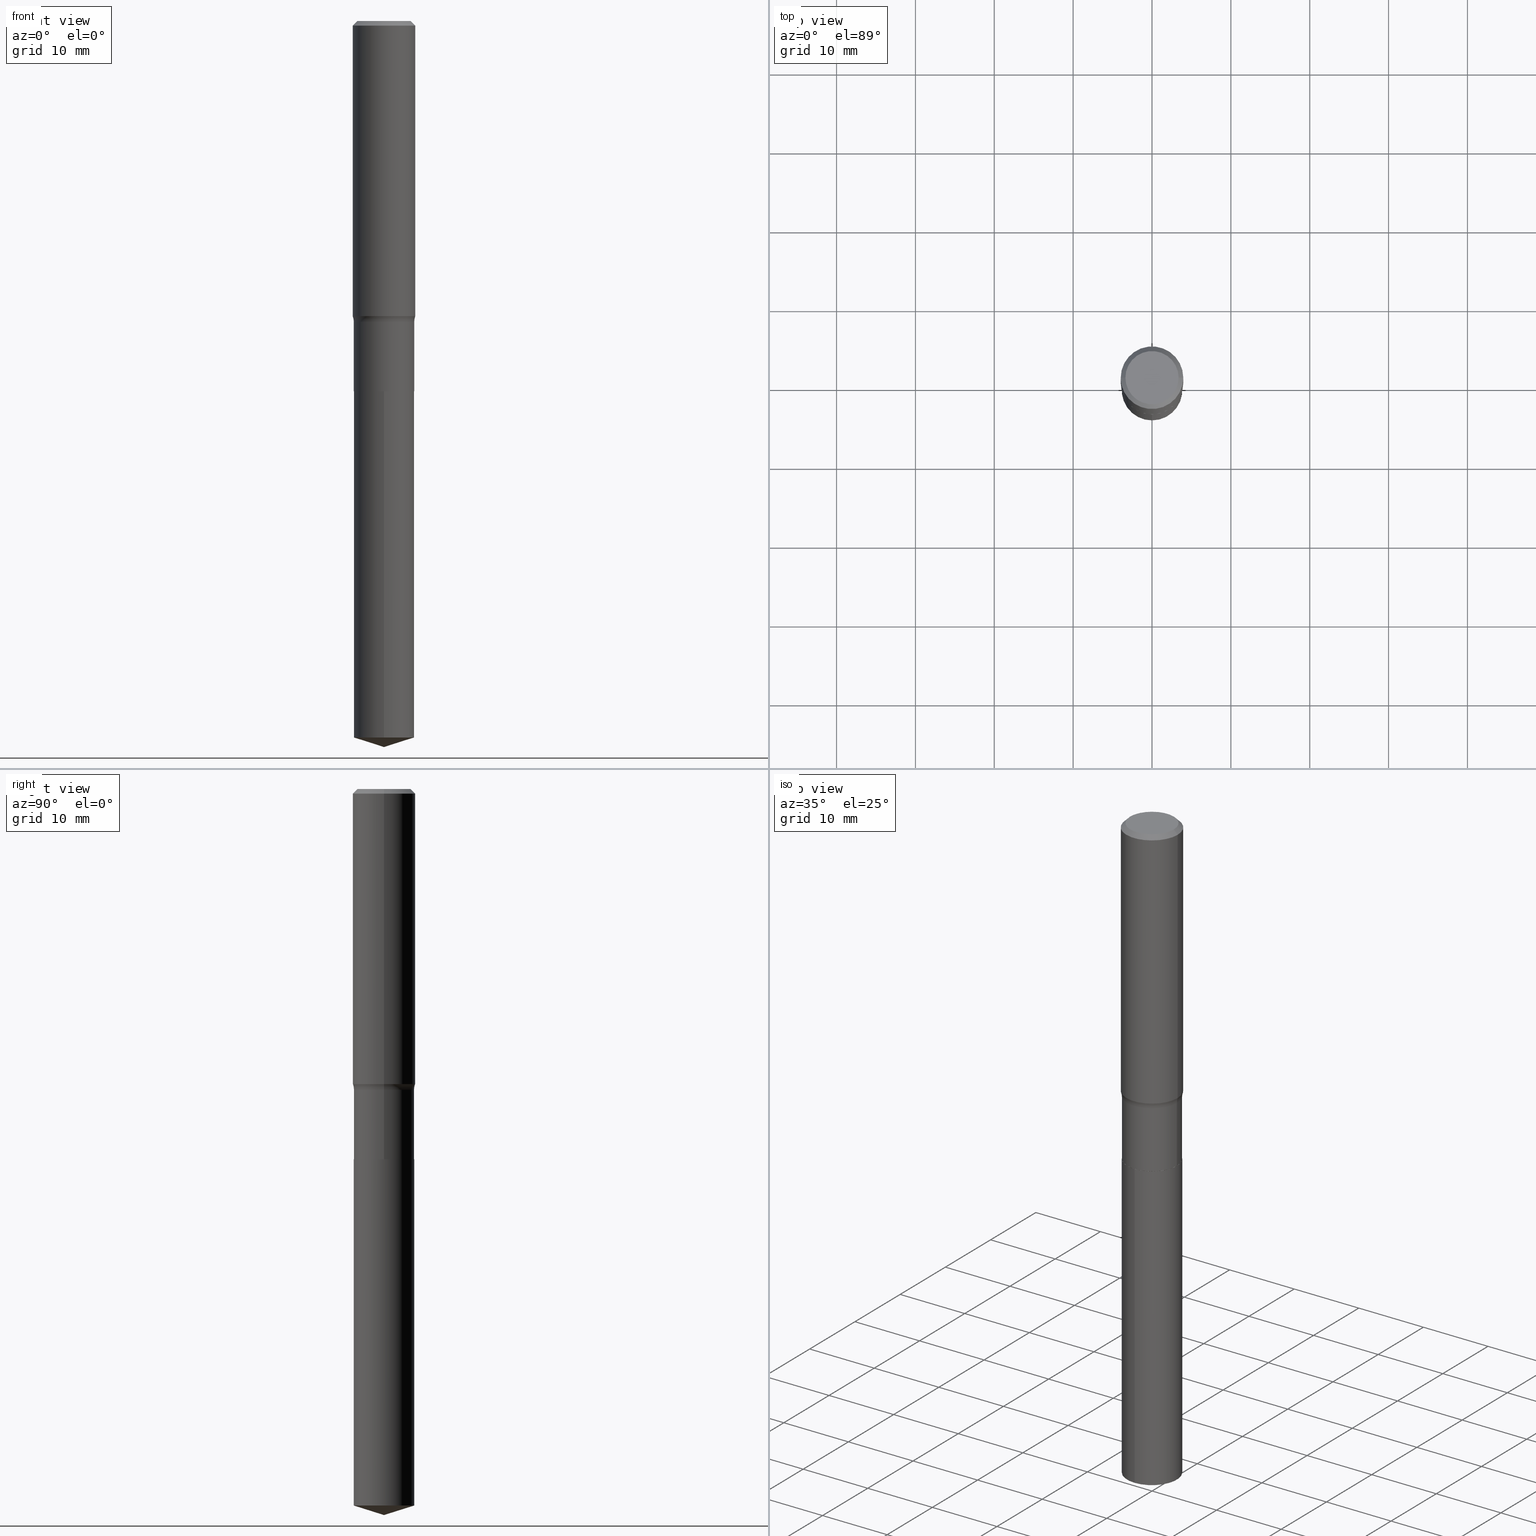
[diagram: canonical four-view strip — front | top / right | iso, engineering-drawing reading convention]
A machine part, canonical four-view strip (front | top / right | iso — engineering-drawing reading convention). The complete STEP part file that produces these views, byte-faithful:
ISO-10303-21;
HEADER;
FILE_DESCRIPTION (( 'STEP AP203' ),
    '1' );
FILE_NAME ('52347.STEP',
    '2024-04-19T13:50:18',
    ( '' ),
    ( '' ),
    'SwSTEP 2.0',
    'SolidWorks 2023',
    '' );
FILE_SCHEMA (( 'CONFIG_CONTROL_DESIGN' ));
ENDSEC;

DATA;
#1 = ADVANCED_FACE ( 'NONE', ( #156 ), #66, .T. ) ;
#2 = CARTESIAN_POINT ( 'NONE',  ( -0.1562500000000000000, 1.009256324509342545E-15, -0.02343750000000013878 ) ) ;
#3 = DIRECTION ( 'NONE',  ( -2.445468183589495391E-29, 3.491482230435539651E-15, 1.000000000000000000 ) ) ;
#4 = CARTESIAN_POINT ( 'NONE',  ( 3.603318810622414011E-29, -5.144584283132411729E-15, -1.473467500999733115 ) ) ;
#5 = CARTESIAN_POINT ( 'NONE',  ( 0.000000000000000000, 0.000000000000000000, 0.000000000000000000 ) ) ;
#6 = CIRCLE ( 'NONE', #280, 0.07799999999999999989 ) ;
#7 = VECTOR ( 'NONE', #129, 39.37007874015748143 ) ;
#8 = ORIENTED_EDGE ( 'NONE', *, *, #55, .F. ) ;
#9 = APPROVAL ( #398, 'UNSPECIFIED' ) ;
#10 = CARTESIAN_POINT ( 'NONE',  ( 0.000000000000000000, 0.000000000000000000, 0.000000000000000000 ) ) ;
#11 = CARTESIAN_POINT ( 'NONE',  ( 0.1509999999999999676, -6.297235742737493798E-15, -1.501600000000000268 ) ) ;
#12 = LINE ( 'NONE', #472, #463 ) ;
#13 = CC_DESIGN_PERSON_AND_ORGANIZATION_ASSIGNMENT ( #368, #220, ( #250 ) ) ;
#14 = AXIS2_PLACEMENT_3D ( 'NONE', #260, #217, #101 ) ;
#15 = CARTESIAN_POINT ( 'NONE',  ( -0.1562500000000000000, -1.502984913880617145E-15, -0.02343750000000013878 ) ) ;
#16 = DIRECTION ( 'NONE',  ( 1.000000000000000000, -6.982962677686266711E-15, 0.000000000000000000 ) ) ;
#17 = CARTESIAN_POINT ( 'NONE',  ( 0.1504999999999999949, -7.506335730378875290E-15, -1.848900000000000432 ) ) ;
#18 = FACE_OUTER_BOUND ( 'NONE', #40, .T. ) ;
#19 = EDGE_CURVE ( 'NONE', #161, #153, #341, .T. ) ;
#20 = CONICAL_SURFACE ( 'NONE', #170, 0.1562500000000000000, 0.7853981633974452814 ) ;
#21 = VECTOR ( 'NONE', #22, 39.37007874015748143 ) ;
#22 = DIRECTION ( 'NONE',  ( 0.7071067811866199593, -2.468850131083015945E-15, 0.7071067811864750752 ) ) ;
#23 = CC_DESIGN_PERSON_AND_ORGANIZATION_ASSIGNMENT ( #225, #72, ( #238 ) ) ;
#24 = DATE_AND_TIME ( #333, #85 ) ;
#25 = DIRECTION ( 'NONE',  ( -6.982962677686265133E-15, -1.000000000000000000, 3.618341713462600054E-15 ) ) ;
#26 = ORIENTED_EDGE ( 'NONE', *, *, #408, .T. ) ;
#27 = APPROVAL_STATUS ( 'not_yet_approved' ) ;
#28 = ADVANCED_FACE ( 'NONE', ( #189 ), #20, .T. ) ;
#29 =( NAMED_UNIT ( * ) SI_UNIT ( $, .STERADIAN. ) SOLID_ANGLE_UNIT ( ) );
#30 = CARTESIAN_POINT ( 'NONE',  ( 0.1509999999999999953, -7.508081471048297583E-15, -1.848400000000000487 ) ) ;
#31 = COORDINATED_UNIVERSAL_TIME_OFFSET ( 5, 0, .BEHIND. ) ;
#32 = COORDINATED_UNIVERSAL_TIME_OFFSET ( 5, 0, .BEHIND. ) ;
#33 = CALENDAR_DATE ( 2024, 19, 4 ) ;
#34 = ORIENTED_EDGE ( 'NONE', *, *, #328, .F. ) ;
#35 = CYLINDRICAL_SURFACE ( 'NONE', #331, 0.1562500000000000833 ) ;
#36 = ORIENTED_EDGE ( 'NONE', *, *, #451, .T. ) ;
#37 = EDGE_CURVE ( 'NONE', #481, #339, #337, .T. ) ;
#38 = COORDINATED_UNIVERSAL_TIME_OFFSET ( 5, 0, .BEHIND. ) ;
#39 = VERTEX_POINT ( 'NONE', #370 ) ;
#40 = EDGE_LOOP ( 'NONE', ( #80, #423, #453 ) ) ;
#41 = DATE_AND_TIME ( #33, #281 ) ;
#42 = ORIENTED_EDGE ( 'NONE', *, *, #19, .T. ) ;
#43 = ORIENTED_EDGE ( 'NONE', *, *, #289, .F. ) ;
#44 = CC_DESIGN_PERSON_AND_ORGANIZATION_ASSIGNMENT ( #113, #372, ( #340 ) ) ;
#45 = FACE_OUTER_BOUND ( 'NONE', #226, .T. ) ;
#46 = AXIS2_PLACEMENT_3D ( 'NONE', #382, #75, #338 ) ;
#47 = DIRECTION ( 'NONE',  ( -0.7071067811866199593, 7.493145998870616062E-15, 0.7071067811864750752 ) ) ;
#48 = LINE ( 'NONE', #211, #384 ) ;
#49 = CARTESIAN_POINT ( 'NONE',  ( 4.521427275755699550E-29, -6.455399847387092276E-15, -1.848900000000000432 ) ) ;
#50 = DIRECTION ( 'NONE',  ( -1.000000000000000000, 6.982962677686266711E-15, 0.000000000000000000 ) ) ;
#51 = CIRCLE ( 'NONE', #196, 0.1509999999999999676 ) ;
#52 = FACE_OUTER_BOUND ( 'NONE', #355, .T. ) ;
#53 = ORIENTED_EDGE ( 'NONE', *, *, #328, .T. ) ;
#54 = CARTESIAN_POINT ( 'NONE',  ( 5.731567514496448055E-31, -8.183159387913671455E-17, -0.02343750000000013878 ) ) ;
#55 = EDGE_CURVE ( 'NONE', #339, #415, #392, .T. ) ;
#56 = DIRECTION ( 'NONE',  ( 1.000000000000000000, -6.982962677686268288E-15, 4.876286914311434227E-29 ) ) ;
#57 = DIRECTION ( 'NONE',  ( 1.000000000000000000, -6.982962677686266711E-15, 4.876176775795935232E-29 ) ) ;
#58 = EDGE_LOOP ( 'NONE', ( #77, #224, #458, #34 ) ) ;
#59 = DIRECTION ( 'NONE',  ( -2.445468806185136597E-29, 3.491481338843145583E-15, 1.000000000000000000 ) ) ;
#60 = COORDINATED_UNIVERSAL_TIME_OFFSET ( 5, 0, .BEHIND. ) ;
#61 = CIRCLE ( 'NONE', #367, 0.1562500000000000000 ) ;
#62 = CIRCLE ( 'NONE', #427, 0.1504999999999999949 ) ;
#63 = LENGTH_MEASURE_WITH_UNIT ( LENGTH_MEASURE( 0.02539999999999999897 ), #219 );
#64 = DIRECTION ( 'NONE',  ( -2.445468806185136597E-29, 3.491481338843145583E-15, 1.000000000000000000 ) ) ;
#65 = DATE_TIME_ROLE ( 'creation_date' ) ;
#66 = CONICAL_SURFACE ( 'NONE', #109, 0.1504999999999999949, 0.7853981633975507526 ) ;
#67 = CIRCLE ( 'NONE', #402, 0.1509999999999999953 ) ;
#68 = MANIFOLD_SOLID_BREP ( 'Body-Move/Copy2[1]', #488 ) ;
#69 = PERSON ( 'UNSPECIFIED', 'UNSPECIFIED', 'UNSPECIFIED', ('UNSPECIFIED'), ('UNSPECIFIED'), ('UNSPECIFIED') ) ;
#70 = VERTEX_POINT ( 'NONE', #277 ) ;
#71 = EDGE_CURVE ( 'NONE', #487, #221, #348, .T. ) ;
#72 = PERSON_AND_ORGANIZATION_ROLE ( 'design_owner' ) ;
#73 = ORIENTED_EDGE ( 'NONE', *, *, #173, .F. ) ;
#74 = ORIENTED_EDGE ( 'NONE', *, *, #89, .F. ) ;
#75 = DIRECTION ( 'NONE',  ( -2.445468806185136597E-29, 3.491481338843145583E-15, 1.000000000000000000 ) ) ;
#76 = MANIFOLD_SOLID_BREP ( 'Body-Move/Copy2[2]', #285 ) ;
#77 = ORIENTED_EDGE ( 'NONE', *, *, #166, .T. ) ;
#78 = AXIS2_PLACEMENT_3D ( 'NONE', #81, #380, #227 ) ;
#79 = FACE_OUTER_BOUND ( 'NONE', #464, .T. ) ;
#80 = ORIENTED_EDGE ( 'NONE', *, *, #376, .F. ) ;
#81 = CARTESIAN_POINT ( 'NONE',  ( -7.955031918821650812E-47, 1.135767727816383927E-32, 3.252968060235157842E-18 ) ) ;
#82 = ORIENTED_EDGE ( 'NONE', *, *, #37, .F. ) ;
#83 = DIRECTION ( 'NONE',  ( 7.105427357601001859E-15, 1.000000000000000000, -3.491481338843145583E-15 ) ) ;
#84 = DIRECTION ( 'NONE',  ( -2.445468806185136597E-29, 3.491481338843145583E-15, 1.000000000000000000 ) ) ;
#85 = LOCAL_TIME ( 9, 50, 18.00000000000000000, #38 ) ;
#86 = CARTESIAN_POINT ( 'NONE',  ( -0.1562500000000000833, 1.110223024625157132E-15, -7.685836078523293962E-30 ) ) ;
#87 = ADVANCED_FACE ( 'NONE', ( #246 ), #401, .T. ) ;
#88 = CARTESIAN_POINT ( 'NONE',  ( -0.1509999999999999676, 1.072919530997751050E-15, -7.427591986284906212E-30 ) ) ;
#89 = EDGE_CURVE ( 'NONE', #153, #161, #256, .T. ) ;
#90 = UNCERTAINTY_MEASURE_WITH_UNIT (LENGTH_MEASURE( 1.000000000000000082E-05 ), #139, 'distance_accuracy_value', 'NONE');
#91 = DIRECTION ( 'NONE',  ( 1.000000000000000000, -6.982962677686266711E-15, 4.876176775795936353E-29 ) ) ;
#92 = ORIENTED_EDGE ( 'NONE', *, *, #459, .T. ) ;
#93 = CARTESIAN_POINT ( 'NONE',  ( 0.2289999999999999258, -6.841906831597022633E-15, -1.501600000000000268 ) ) ;
#94 = AXIS2_PLACEMENT_3D ( 'NONE', #311, #84, #383 ) ;
#95 = CARTESIAN_POINT ( 'NONE',  ( 0.1562500000000000000, -1.172919512267615999E-15, -0.02343750000000013878 ) ) ;
#96 = CARTESIAN_POINT ( 'NONE',  ( 0.000000000000000000, 0.000000000000000000, 0.000000000000000000 ) ) ;
#97 = PERSON_AND_ORGANIZATION ( #69, #393 ) ;
#98 = CARTESIAN_POINT ( 'NONE',  ( 3.672115959367601524E-29, -5.242808378406868566E-15, -1.501600000000000268 ) ) ;
#99 = ORIENTED_EDGE ( 'NONE', *, *, #289, .T. ) ;
#100 = AXIS2_PLACEMENT_3D ( 'NONE', #242, #353, #430 ) ;
#101 = DIRECTION ( 'NONE',  ( 1.000000000000000000, -6.982962677686263555E-15, 0.000000000000000000 ) ) ;
#102 = ORIENTED_EDGE ( 'NONE', *, *, #408, .F. ) ;
#103 = APPROVAL ( #406, 'UNSPECIFIED' ) ;
#104 = ORIENTED_EDGE ( 'NONE', *, *, #482, .F. ) ;
#105 = FACE_OUTER_BOUND ( 'NONE', #409, .T. ) ;
#106 = COORDINATED_UNIVERSAL_TIME_OFFSET ( 5, 0, .BEHIND. ) ;
#107 = APPLICATION_PROTOCOL_DEFINITION ( 'international standard', 'config_control_design', 1994, #479 ) ;
#108 = CALENDAR_DATE ( 2024, 19, 4 ) ;
#109 = AXIS2_PLACEMENT_3D ( 'NONE', #234, #228, #306 ) ;
#110 = ORIENTED_EDGE ( 'NONE', *, *, #118, .F. ) ;
#111 = APPROVAL_PERSON_ORGANIZATION ( #292, #419, #293 ) ;
#112 = CARTESIAN_POINT ( 'NONE',  ( 4.520204541352607869E-29, -6.453654106717671562E-15, -1.848400000000000487 ) ) ;
#113 = PERSON_AND_ORGANIZATION ( #69, #393 ) ;
#114 = DIRECTION ( 'NONE',  ( 2.445468806185136597E-29, -3.491481338843145583E-15, -1.000000000000000000 ) ) ;
#115 = VERTEX_POINT ( 'NONE', #388 ) ;
#116 = FACE_OUTER_BOUND ( 'NONE', #160, .T. ) ;
#117 = DIRECTION ( 'NONE',  ( 1.000000000000000000, -6.982962677686266711E-15, 0.000000000000000000 ) ) ;
#118 = EDGE_CURVE ( 'NONE', #221, #379, #302, .T. ) ;
#119 = CARTESIAN_POINT ( 'NONE',  ( 3.672115959367601524E-29, -5.242808378406868566E-15, -1.501600000000000268 ) ) ;
#120 = ORIENTED_EDGE ( 'NONE', *, *, #243, .T. ) ;
#121 =( GEOMETRIC_REPRESENTATION_CONTEXT ( 3 ) GLOBAL_UNCERTAINTY_ASSIGNED_CONTEXT ( ( #90 ) ) GLOBAL_UNIT_ASSIGNED_CONTEXT ( ( #139, #395, #29 ) ) REPRESENTATION_CONTEXT ( 'NONE', 'WORKASPACE' ) );
#122 = DIRECTION ( 'NONE',  ( -2.445468806185136597E-29, 3.491481338843145583E-15, 1.000000000000000000 ) ) ;
#123 = DIRECTION ( 'NONE',  ( -2.445468806185136597E-29, 3.491481338843145583E-15, 1.000000000000000000 ) ) ;
#124 = CARTESIAN_POINT ( 'NONE',  ( 0.1504999999999999949, -7.506335730378875290E-15, -1.848900000000000432 ) ) ;
#125 = DIRECTION ( 'NONE',  ( -2.445468806185136597E-29, 3.491481338843145583E-15, 1.000000000000000000 ) ) ;
#126 = ORIENTED_EDGE ( 'NONE', *, *, #303, .F. ) ;
#127 = CARTESIAN_POINT ( 'NONE',  ( -8.741345162783932902E-28, 1.248033088952442065E-13, 35.74507874015748143 ) ) ;
#128 = EDGE_CURVE ( 'NONE', #415, #339, #61, .T. ) ;
#129 = DIRECTION ( 'NONE',  ( -2.445468183589495391E-29, 3.491482230435539651E-15, 1.000000000000000000 ) ) ;
#130 = AXIS2_PLACEMENT_3D ( 'NONE', #112, #457, #192 ) ;
#131 = CIRCLE ( 'NONE', #454, 0.1328125000000000000 ) ;
#132 = EDGE_CURVE ( 'NONE', #153, #339, #310, .T. ) ;
#133 = DIRECTION ( 'NONE',  ( -2.445468183589495391E-29, 3.491482230435539651E-15, 1.000000000000000000 ) ) ;
#134 = ADVANCED_FACE ( 'NONE', ( #474 ), #445, .T. ) ;
#135 = DIRECTION ( 'NONE',  ( 1.000000000000000000, -6.982962677686265133E-15, 4.883557194083112340E-29 ) ) ;
#136 = DIRECTION ( 'NONE',  ( -2.445468183589495391E-29, 3.491482230435539651E-15, 1.000000000000000000 ) ) ;
#137 = AXIS2_PLACEMENT_3D ( 'NONE', #4, #123, #200 ) ;
#138 = CIRCLE ( 'NONE', #100, 0.1509999999999999953 ) ;
#139 =( CONVERSION_BASED_UNIT ( 'INCH', #63 ) LENGTH_UNIT ( ) NAMED_UNIT ( #360 ) );
#140 = ORIENTED_EDGE ( 'NONE', *, *, #321, .T. ) ;
#141 = CARTESIAN_POINT ( 'NONE',  ( -0.1504999999999999949, -5.383383802894031318E-15, -1.848900000000000432 ) ) ;
#142 = ADVANCED_FACE ( 'NONE', ( #202 ), #35, .T. ) ;
#143 = DIRECTION ( 'NONE',  ( 2.438088387897960049E-29, -3.491481338843145188E-15, -1.000000000000000000 ) ) ;
#144 = EDGE_LOOP ( 'NONE', ( #308, #265, #158, #8 ) ) ;
#145 = DIRECTION ( 'NONE',  ( -6.659769872151627355E-15, -0.9537169507482260444, 0.3007057995042756726 ) ) ;
#146 = DATE_AND_TIME ( #359, #429 ) ;
#147 = AXIS2_PLACEMENT_3D ( 'NONE', #191, #329, #117 ) ;
#148 = AXIS2_PLACEMENT_3D ( 'NONE', #93, #316, #247 ) ;
#149 = PLANE ( 'NONE',  #420 ) ;
#150 = LOCAL_TIME ( 9, 50, 18.00000000000000000, #31 ) ;
#151 = PERSON_AND_ORGANIZATION ( #69, #393 ) ;
#152 = APPROVAL_ROLE ( '' ) ;
#153 = VERTEX_POINT ( 'NONE', #272 ) ;
#154 = CIRCLE ( 'NONE', #130, 0.1509999999999999953 ) ;
#155 = CARTESIAN_POINT ( 'NONE',  ( 0.000000000000000000, 0.000000000000000000, 0.000000000000000000 ) ) ;
#156 = FACE_OUTER_BOUND ( 'NONE', #274, .T. ) ;
#157 = APPROVAL_PERSON_ORGANIZATION ( #261, #103, #190 ) ;
#158 = ORIENTED_EDGE ( 'NONE', *, *, #330, .T. ) ;
#159 = ORIENTED_EDGE ( 'NONE', *, *, #385, .T. ) ;
#160 = EDGE_LOOP ( 'NONE', ( #452, #405 ) ) ;
#161 = VERTEX_POINT ( 'NONE', #266 ) ;
#162 = ORIENTED_EDGE ( 'NONE', *, *, #459, .F. ) ;
#163 = AXIS2_PLACEMENT_3D ( 'NONE', #253, #64, #57 ) ;
#164 = DIRECTION ( 'NONE',  ( -2.445468806185136597E-29, 3.491481338843145583E-15, 1.000000000000000000 ) ) ;
#165 = DIRECTION ( 'NONE',  ( 6.982962677686265922E-15, 1.000000000000000000, -3.491482230435539651E-15 ) ) ;
#166 = EDGE_CURVE ( 'NONE', #379, #221, #154, .T. ) ;
#167 = DIRECTION ( 'NONE',  ( 1.000000000000000000, -6.982962677686265133E-15, 0.000000000000000000 ) ) ;
#168 = DIRECTION ( 'NONE',  ( -2.445468183589495391E-29, 3.491482230435539651E-15, 1.000000000000000000 ) ) ;
#169 = DIRECTION ( 'NONE',  ( -6.982962677686266711E-15, -1.000000000000000000, 3.618341713462600054E-15 ) ) ;
#170 = AXIS2_PLACEMENT_3D ( 'NONE', #327, #114, #231 ) ;
#171 = CIRCLE ( 'NONE', #148, 0.07799999999999999989 ) ;
#172 = CARTESIAN_POINT ( 'NONE',  ( 5.731567514496448055E-31, -8.183159387913671455E-17, -0.02343750000000013878 ) ) ;
#173 = EDGE_CURVE ( 'NONE', #481, #491, #193, .T. ) ;
#174 = CYLINDRICAL_SURFACE ( 'NONE', #358, 0.1509999999999999953 ) ;
#175 = DIRECTION ( 'NONE',  ( -2.445468183589495391E-29, 3.491482230435539651E-15, 1.000000000000000000 ) ) ;
#176 = DIRECTION ( 'NONE',  ( -6.982962677686266711E-15, -1.000000000000000000, 3.500519750498728492E-15 ) ) ;
#177 = VECTOR ( 'NONE', #350, 39.37007874015748143 ) ;
#178 = ADVANCED_FACE ( 'NONE', ( #371 ), #416, .T. ) ;
#179 = ORIENTED_EDGE ( 'NONE', *, *, #252, .F. ) ;
#180 = ADVANCED_FACE ( 'NONE', ( #79 ), #437, .F. ) ;
#181 = LINE ( 'NONE', #298, #286 ) ;
#182 = APPROVAL_DATE_TIME ( #365, #419 ) ;
#183 = ORIENTED_EDGE ( 'NONE', *, *, #336, .F. ) ;
#184 = AXIS2_PLACEMENT_3D ( 'NONE', #431, #467, #167 ) ;
#185 = AXIS2_PLACEMENT_3D ( 'NONE', #216, #168, #169 ) ;
#186 = CC_DESIGN_APPROVAL ( #419, ( #250 ) ) ;
#187 = ORIENTED_EDGE ( 'NONE', *, *, #385, .F. ) ;
#188 = DATE_TIME_ROLE ( 'classification_date' ) ;
#189 = FACE_OUTER_BOUND ( 'NONE', #361, .T. ) ;
#190 = APPROVAL_ROLE ( '' ) ;
#191 = CARTESIAN_POINT ( 'NONE',  ( 5.731567514496448055E-31, -8.183159387913671455E-17, -0.02343750000000013878 ) ) ;
#192 = DIRECTION ( 'NONE',  ( 1.000000000000000000, -6.982962677686269077E-15, 0.000000000000000000 ) ) ;
#193 = CIRCLE ( 'NONE', #78, 0.1328125000000000000 ) ;
#194 = APPROVAL_DATE_TIME ( #41, #103 ) ;
#195 = EDGE_LOOP ( 'NONE', ( #26, #290 ) ) ;
#196 = AXIS2_PLACEMENT_3D ( 'NONE', #98, #322, #476 ) ;
#197 = DIRECTION ( 'NONE',  ( -2.438088387897960049E-29, 3.491481338843145188E-15, 1.000000000000000000 ) ) ;
#198 = ADVANCED_BREP_SHAPE_REPRESENTATION ( '52347', ( #68, #76, #410 ), #121 ) ;
#199 = APPLICATION_PROTOCOL_DEFINITION ( 'international standard', 'config_control_design', 1994, #324 ) ;
#200 = DIRECTION ( 'NONE',  ( 1.000000000000000000, -6.982962677686269077E-15, 0.000000000000000000 ) ) ;
#201 = PRODUCT_DEFINITION_SHAPE ( 'NONE', 'NONE',  #340 ) ;
#202 = FACE_OUTER_BOUND ( 'NONE', #203, .T. ) ;
#203 = EDGE_LOOP ( 'NONE', ( #42, #366, #413, #486 ) ) ;
#204 = ADVANCED_FACE ( 'NONE', ( #116 ), #230, .F. ) ;
#205 = CC_DESIGN_APPROVAL ( #103, ( #340 ) ) ;
#206 = DIRECTION ( 'NONE',  ( 2.445468183589495111E-29, -3.491482230435539651E-15, -1.000000000000000000 ) ) ;
#207 = DIRECTION ( 'NONE',  ( 2.445468806185136597E-29, -3.491481338843145583E-15, -1.000000000000000000 ) ) ;
#208 = CARTESIAN_POINT ( 'NONE',  ( 3.603318810622414011E-29, -5.144584283132411729E-15, -1.473467500999733115 ) ) ;
#209 = DIRECTION ( 'NONE',  ( -2.445468806185136877E-29, 3.491481338843145188E-15, 1.000000000000000000 ) ) ;
#210 = ADVANCED_FACE ( 'NONE', ( #492 ), #378, .F. ) ;
#211 = CARTESIAN_POINT ( 'NONE',  ( 0.1509999999999999676, -1.054427364330626021E-15, 7.363026931451862094E-30 ) ) ;
#212 = AXIS2_PLACEMENT_3D ( 'NONE', #375, #197, #335 ) ;
#213 = DIRECTION ( 'NONE',  ( 1.000000000000000000, -6.982962677686269077E-15, 0.000000000000000000 ) ) ;
#214 = DIRECTION ( 'NONE',  ( -1.000000000000000000, 6.982962677686265922E-15, -4.876176775795935793E-29 ) ) ;
#215 = ORIENTED_EDGE ( 'NONE', *, *, #229, .T. ) ;
#216 = CARTESIAN_POINT ( 'NONE',  ( 8.748394289993295297E-29, -1.249039155894768275E-14, -3.577389882879273841 ) ) ;
#217 = DIRECTION ( 'NONE',  ( -2.445468806185136597E-29, 3.491481338843145583E-15, 1.000000000000000000 ) ) ;
#218 = SHAPE_DEFINITION_REPRESENTATION ( #201, #198 ) ;
#219 =( LENGTH_UNIT ( ) NAMED_UNIT ( * ) SI_UNIT ( $, .METRE. ) );
#220 = PERSON_AND_ORGANIZATION_ROLE ( 'creator' ) ;
#221 = VERTEX_POINT ( 'NONE', #460 ) ;
#222 = EDGE_CURVE ( 'NONE', #304, #487, #62, .T. ) ;
#223 = AXIS2_PLACEMENT_3D ( 'NONE', #235, #3, #490 ) ;
#224 = ORIENTED_EDGE ( 'NONE', *, *, #295, .T. ) ;
#225 = PERSON_AND_ORGANIZATION ( #69, #393 ) ;
#226 = EDGE_LOOP ( 'NONE', ( #215, #389, #102, #179 ) ) ;
#227 = DIRECTION ( 'NONE',  ( 1.000000000000000000, -6.982962677686268288E-15, 4.876286914311434227E-29 ) ) ;
#228 = DIRECTION ( 'NONE',  ( -2.445468806185136597E-29, 3.491481338843145583E-15, 1.000000000000000000 ) ) ;
#229 = EDGE_CURVE ( 'NONE', #478, #305, #332, .T. ) ;
#230 = PLANE ( 'NONE',  #212 ) ;
#231 = DIRECTION ( 'NONE',  ( -1.000000000000000000, 6.982962677686266711E-15, 0.000000000000000000 ) ) ;
#232 = VECTOR ( 'NONE', #145, 39.37007874015748854 ) ;
#233 = DIRECTION ( 'NONE',  ( -2.445468806185136597E-29, 3.491481338843145583E-15, 1.000000000000000000 ) ) ;
#234 = CARTESIAN_POINT ( 'NONE',  ( 4.521427275755699550E-29, -6.455399847387092276E-15, -1.848900000000000432 ) ) ;
#235 = CARTESIAN_POINT ( 'NONE',  ( 4.521427275755699550E-29, -6.455399847387092276E-15, -1.848900000000000432 ) ) ;
#236 = DIRECTION ( 'NONE',  ( -2.445468806185136597E-29, 3.491481338843145583E-15, 1.000000000000000000 ) ) ;
#237 = DIRECTION ( 'NONE',  ( -1.000000000000000000, 7.105427357600997914E-15, 0.000000000000000000 ) ) ;
#238 = PRODUCT ( '52347', '52347', '', ( #264 ) ) ;
#239 = AXIS2_PLACEMENT_3D ( 'NONE', #208, #164, #435 ) ;
#240 = AXIS2_PLACEMENT_3D ( 'NONE', #96, #396, #477 ) ;
#241 = ORIENTED_EDGE ( 'NONE', *, *, #166, .F. ) ;
#242 = CARTESIAN_POINT ( 'NONE',  ( 8.748394289993295297E-29, -1.249039155894768275E-14, -3.577389882879273841 ) ) ;
#243 = EDGE_CURVE ( 'NONE', #305, #478, #138, .T. ) ;
#244 = CYLINDRICAL_SURFACE ( 'NONE', #249, 0.1509999999999999676 ) ;
#245 = CARTESIAN_POINT ( 'NONE',  ( 1.072919530997796410E-15, 0.1509999999999935560, -1.848900000000000876 ) ) ;
#246 = FACE_OUTER_BOUND ( 'NONE', #267, .T. ) ;
#247 = DIRECTION ( 'NONE',  ( 1.000000000000000000, -6.982962677686270655E-15, 0.000000000000000000 ) ) ;
#248 = AXIS2_PLACEMENT_3D ( 'NONE', #391, #236, #213 ) ;
#249 = AXIS2_PLACEMENT_3D ( 'NONE', #10, #275, #91 ) ;
#250 = PRODUCT_DEFINITION_FORMATION_WITH_SPECIFIED_SOURCE ( 'ANY', '', #238, .NOT_KNOWN. ) ;
#251 = CYLINDRICAL_SURFACE ( 'NONE', #240, 0.1509999999999999676 ) ;
#252 = EDGE_CURVE ( 'NONE', #478, #70, #346, .T. ) ;
#253 = CARTESIAN_POINT ( 'NONE',  ( 0.000000000000000000, 0.000000000000000000, 0.000000000000000000 ) ) ;
#254 = PERSON_AND_ORGANIZATION_ROLE ( 'classification_officer' ) ;
#255 = ORIENTED_EDGE ( 'NONE', *, *, #323, .T. ) ;
#256 = CIRCLE ( 'NONE', #239, 0.1562500000000001388 ) ;
#257 = CALENDAR_DATE ( 2024, 19, 4 ) ;
#258 = CIRCLE ( 'NONE', #94, 0.1504999999999999949 ) ;
#259 = CARTESIAN_POINT ( 'NONE',  ( -3.977515959410825406E-47, 5.678838639081919634E-33, 1.626484030117578921E-18 ) ) ;
#260 = CARTESIAN_POINT ( 'NONE',  ( 3.672115959367601524E-29, -5.242808378406868566E-15, -1.501600000000000268 ) ) ;
#261 = PERSON_AND_ORGANIZATION ( #69, #393 ) ;
#262 = ORIENTED_EDGE ( 'NONE', *, *, #323, .F. ) ;
#263 = AXIS2_PLACEMENT_3D ( 'NONE', #449, #175, #297 ) ;
#264 = MECHANICAL_CONTEXT ( 'NONE', #479, 'mechanical' ) ;
#265 = ORIENTED_EDGE ( 'NONE', *, *, #89, .T. ) ;
#266 = CARTESIAN_POINT ( 'NONE',  ( 0.1562500000000001388, -6.235672201520892481E-15, -1.473467500999733115 ) ) ;
#267 = EDGE_LOOP ( 'NONE', ( #400, #418, #241, #104 ) ) ;
#268 = ADVANCED_FACE ( 'NONE', ( #18 ), #475, .T. ) ;
#269 = ORIENTED_EDGE ( 'NONE', *, *, #303, .T. ) ;
#270 = ORIENTED_EDGE ( 'NONE', *, *, #363, .F. ) ;
#271 = VERTEX_POINT ( 'NONE', #312 ) ;
#272 = CARTESIAN_POINT ( 'NONE',  ( -0.1562500000000001388, -4.034361258507254400E-15, -1.473467500999733115 ) ) ;
#273 = EDGE_LOOP ( 'NONE', ( #183, #120, #381, #456 ) ) ;
#274 = EDGE_LOOP ( 'NONE', ( #484, #140, #441, #110 ) ) ;
#275 = DIRECTION ( 'NONE',  ( -2.445468806185136597E-29, 3.491481338843145583E-15, 1.000000000000000000 ) ) ;
#276 = DIRECTION ( 'NONE',  ( 1.000000000000000000, -6.982962677686265133E-15, 0.000000000000000000 ) ) ;
#277 = CARTESIAN_POINT ( 'NONE',  ( -1.054427364330580859E-15, -0.1510000000000064346, -1.848899999999999766 ) ) ;
#278 = ADVANCED_FACE ( 'NONE', ( #434 ), #447, .T. ) ;
#279 = VECTOR ( 'NONE', #47, 39.37007874015748143 ) ;
#280 = AXIS2_PLACEMENT_3D ( 'NONE', #386, #83, #237 ) ;
#281 = LOCAL_TIME ( 9, 50, 18.00000000000000000, #32 ) ;
#282 = CARTESIAN_POINT ( 'NONE',  ( 0.1562500000000000833, -1.091087918388479765E-15, 7.619026212181153180E-30 ) ) ;
#283 = DIRECTION ( 'NONE',  ( -2.445468806185136877E-29, 3.491481338843145188E-15, 1.000000000000000000 ) ) ;
#284 = CARTESIAN_POINT ( 'NONE',  ( -1.054427364330580859E-15, -0.1510000000000064624, -1.848899999999999766 ) ) ;
#285 = CLOSED_SHELL ( 'NONE', ( #87, #278, #142, #210, #313, #425, #180, #432, #28, #471, #204, #1 ) ) ;
#286 = VECTOR ( 'NONE', #364, 39.37007874015748143 ) ;
#287 = AXIS2_PLACEMENT_3D ( 'NONE', #127, #133, #176 ) ;
#288 = APPROVAL_PERSON_ORGANIZATION ( #326, #9, #152 ) ;
#289 = EDGE_CURVE ( 'NONE', #161, #294, #171, .T. ) ;
#290 = ORIENTED_EDGE ( 'NONE', *, *, #466, .T. ) ;
#291 = LINE ( 'NONE', #362, #232 ) ;
#292 = PERSON_AND_ORGANIZATION ( #69, #393 ) ;
#293 = APPROVAL_ROLE ( '' ) ;
#294 = VERTEX_POINT ( 'NONE', #11 ) ;
#295 = EDGE_CURVE ( 'NONE', #221, #39, #394, .T. ) ;
#296 = CIRCLE ( 'NONE', #263, 0.1509999999999999953 ) ;
#297 = DIRECTION ( 'NONE',  ( -6.982962677686265133E-15, -1.000000000000000000, 3.618341713462600054E-15 ) ) ;
#298 = CARTESIAN_POINT ( 'NONE',  ( 8.864824487933958949E-29, -1.265661978839847766E-14, -3.625000000000000444 ) ) ;
#299 = DATE_AND_TIME ( #257, #403 ) ;
#300 = EDGE_LOOP ( 'NONE', ( #187, #269, #438, #82 ) ) ;
#301 = DIRECTION ( 'NONE',  ( -0.7071067811865453523, 2.468850131082234184E-15, -0.7071067811865496822 ) ) ;
#302 = CIRCLE ( 'NONE', #248, 0.1509999999999999953 ) ;
#303 = EDGE_CURVE ( 'NONE', #491, #415, #12, .T. ) ;
#304 = VERTEX_POINT ( 'NONE', #124 ) ;
#305 = VERTEX_POINT ( 'NONE', #468 ) ;
#306 = DIRECTION ( 'NONE',  ( 1.000000000000000000, -6.982962677686265133E-15, 0.000000000000000000 ) ) ;
#307 = EDGE_LOOP ( 'NONE', ( #74, #255, #92, #43 ) ) ;
#308 = ORIENTED_EDGE ( 'NONE', *, *, #132, .F. ) ;
#309 = VECTOR ( 'NONE', #283, 39.37007874015748143 ) ;
#310 = LINE ( 'NONE', #86, #377 ) ;
#311 = CARTESIAN_POINT ( 'NONE',  ( 4.521427275755699550E-29, -6.455399847387092276E-15, -1.848900000000000432 ) ) ;
#312 = CARTESIAN_POINT ( 'NONE',  ( 8.864822165511922648E-29, -1.265662308532883311E-14, -3.625000000000000444 ) ) ;
#313 = ADVANCED_FACE ( 'NONE', ( #387 ), #244, .T. ) ;
#314 = VECTOR ( 'NONE', #301, 39.37007874015748143 ) ;
#315 = ORIENTED_EDGE ( 'NONE', *, *, #173, .T. ) ;
#316 = DIRECTION ( 'NONE',  ( -6.982962677686266711E-15, -1.000000000000000000, 3.491481338843145583E-15 ) ) ;
#317 = CARTESIAN_POINT ( 'NONE',  ( 4.521427275755699550E-29, -6.455399847387092276E-15, -1.848900000000000432 ) ) ;
#318 = DIRECTION ( 'NONE',  ( -2.445468806185136877E-29, 3.491481338843145188E-15, 1.000000000000000000 ) ) ;
#319 = ADVANCED_FACE ( 'NONE', ( #426 ), #424, .F. ) ;
#320 = DIRECTION ( 'NONE',  ( 0.7071067811865453523, -7.319954787623248157E-15, -0.7071067811865496822 ) ) ;
#321 = EDGE_CURVE ( 'NONE', #487, #304, #258, .T. ) ;
#322 = DIRECTION ( 'NONE',  ( -2.445468806185136597E-29, 3.491481338843145583E-15, 1.000000000000000000 ) ) ;
#323 = EDGE_CURVE ( 'NONE', #153, #39, #6, .T. ) ;
#324 = APPLICATION_CONTEXT ( 'configuration controlled 3d designs of mechanical parts and assemblies' ) ;
#325 = SECURITY_CLASSIFICATION ( '', '', #442 ) ;
#326 = PERSON_AND_ORGANIZATION ( #69, #393 ) ;
#327 = CARTESIAN_POINT ( 'NONE',  ( 5.731567514496448055E-31, -8.183159387913671455E-17, -0.02343750000000013878 ) ) ;
#328 = EDGE_CURVE ( 'NONE', #379, #294, #48, .T. ) ;
#329 = DIRECTION ( 'NONE',  ( -2.445468806185136597E-29, 3.491481338843145583E-15, 1.000000000000000000 ) ) ;
#330 = EDGE_CURVE ( 'NONE', #161, #415, #469, .T. ) ;
#331 = AXIS2_PLACEMENT_3D ( 'NONE', #5, #122, #414 ) ;
#332 = CIRCLE ( 'NONE', #185, 0.1509999999999999953 ) ;
#333 = CALENDAR_DATE ( 2024, 19, 4 ) ;
#334 = ORIENTED_EDGE ( 'NONE', *, *, #295, .F. ) ;
#335 = DIRECTION ( 'NONE',  ( 1.000000000000000000, -6.982962677686265922E-15, 4.876176775795935793E-29 ) ) ;
#336 = EDGE_CURVE ( 'NONE', #305, #115, #390, .T. ) ;
#337 = LINE ( 'NONE', #2, #314 ) ;
#338 = DIRECTION ( 'NONE',  ( 1.000000000000000000, -6.982962677686265133E-15, 4.883557194083112340E-29 ) ) ;
#339 = VERTEX_POINT ( 'NONE', #15 ) ;
#340 = PRODUCT_DEFINITION ( 'UNKNOWN', '', #250, #480 ) ;
#341 = CIRCLE ( 'NONE', #137, 0.1562500000000001388 ) ;
#342 = CIRCLE ( 'NONE', #14, 0.1509999999999999676 ) ;
#343 = DIRECTION ( 'NONE',  ( -2.445468806185136597E-29, 3.491481338843145583E-15, 1.000000000000000000 ) ) ;
#344 = DIRECTION ( 'NONE',  ( -2.445468806185136877E-29, 3.491481338843145188E-15, 1.000000000000000000 ) ) ;
#345 = ADVANCED_FACE ( 'NONE', ( #45 ), #174, .T. ) ;
#346 = LINE ( 'NONE', #284, #7 ) ;
#347 = CC_DESIGN_DATE_AND_TIME_ASSIGNMENT ( #146, #188, ( #325 ) ) ;
#348 = LINE ( 'NONE', #351, #279 ) ;
#349 = AXIS2_PLACEMENT_3D ( 'NONE', #119, #233, #135 ) ;
#350 = DIRECTION ( 'NONE',  ( -2.445468183589495391E-29, 3.491482230435539651E-15, 1.000000000000000000 ) ) ;
#351 = CARTESIAN_POINT ( 'NONE',  ( -0.1504999999999999949, -5.386033030068142519E-15, -1.848900000000000432 ) ) ;
#352 = LINE ( 'NONE', #17, #21 ) ;
#353 = DIRECTION ( 'NONE',  ( -2.445468183589495391E-29, 3.491482230435539651E-15, 1.000000000000000000 ) ) ;
#354 = CYLINDRICAL_SURFACE ( 'NONE', #163, 0.1562500000000000833 ) ;
#355 = EDGE_LOOP ( 'NONE', ( #315, #159 ) ) ;
#356 = AXIS2_PLACEMENT_3D ( 'NONE', #417, #485, #465 ) ;
#357 = CARTESIAN_POINT ( 'NONE',  ( 4.521427275755699550E-29, -6.455399847387092276E-15, -1.848900000000000432 ) ) ;
#358 = AXIS2_PLACEMENT_3D ( 'NONE', #317, #473, #446 ) ;
#359 = CALENDAR_DATE ( 2024, 19, 4 ) ;
#360 = DIMENSIONAL_EXPONENTS ( 1.000000000000000000, 0.000000000000000000, 0.000000000000000000, 0.000000000000000000, 0.000000000000000000, 0.000000000000000000, 0.000000000000000000 ) ;
#361 = EDGE_LOOP ( 'NONE', ( #126, #73, #374, #369 ) ) ;
#362 = CARTESIAN_POINT ( 'NONE',  ( 8.864822165511922648E-29, -1.265662308532883311E-14, -3.625000000000000444 ) ) ;
#363 = EDGE_CURVE ( 'NONE', #271, #305, #181, .T. ) ;
#364 = DIRECTION ( 'NONE',  ( 6.776566513254252615E-15, 0.9537169507482281539, 0.3007057995042690668 ) ) ;
#365 = DATE_AND_TIME ( #108, #150 ) ;
#366 = ORIENTED_EDGE ( 'NONE', *, *, #132, .T. ) ;
#367 = AXIS2_PLACEMENT_3D ( 'NONE', #172, #125, #16 ) ;
#368 = PERSON_AND_ORGANIZATION ( #69, #393 ) ;
#369 = ORIENTED_EDGE ( 'NONE', *, *, #55, .T. ) ;
#370 = CARTESIAN_POINT ( 'NONE',  ( -0.1509999999999999676, -4.775311711564519013E-15, -1.501600000000000268 ) ) ;
#371 = FACE_OUTER_BOUND ( 'NONE', #273, .T. ) ;
#372 = PERSON_AND_ORGANIZATION_ROLE ( 'creator' ) ;
#373 = ORIENTED_EDGE ( 'NONE', *, *, #19, .F. ) ;
#374 = ORIENTED_EDGE ( 'NONE', *, *, #37, .T. ) ;
#375 = CARTESIAN_POINT ( 'NONE',  ( 4.521427275755699550E-29, -6.455399847387092276E-15, -1.848900000000000432 ) ) ;
#376 = EDGE_CURVE ( 'NONE', #271, #478, #291, .T. ) ;
#377 = VECTOR ( 'NONE', #318, 39.37007874015748143 ) ;
#378 = TOROIDAL_SURFACE ( 'NONE', #349, 0.2289999999999999258, 0.07799999999999999989 ) ;
#379 = VERTEX_POINT ( 'NONE', #30 ) ;
#380 = DIRECTION ( 'NONE',  ( -2.445468806185136597E-29, 3.491481338843145583E-15, 1.000000000000000000 ) ) ;
#381 = ORIENTED_EDGE ( 'NONE', *, *, #252, .T. ) ;
#382 = CARTESIAN_POINT ( 'NONE',  ( 3.672115959367601524E-29, -5.242808378406868566E-15, -1.501600000000000268 ) ) ;
#383 = DIRECTION ( 'NONE',  ( 1.000000000000000000, -6.982962677686265133E-15, 0.000000000000000000 ) ) ;
#384 = VECTOR ( 'NONE', #344, 39.37007874015748143 ) ;
#385 = EDGE_CURVE ( 'NONE', #491, #481, #131, .T. ) ;
#386 = CARTESIAN_POINT ( 'NONE',  ( -0.2289999999999999258, -3.615665513516239273E-15, -1.501600000000000268 ) ) ;
#387 = FACE_OUTER_BOUND ( 'NONE', #58, .T. ) ;
#388 = CARTESIAN_POINT ( 'NONE',  ( 1.072919530997839008E-15, 0.1509999999999935283, -1.848900000000000876 ) ) ;
#389 = ORIENTED_EDGE ( 'NONE', *, *, #336, .T. ) ;
#390 = LINE ( 'NONE', #245, #177 ) ;
#391 = CARTESIAN_POINT ( 'NONE',  ( 4.520204541352607869E-29, -6.453654106717671562E-15, -1.848400000000000487 ) ) ;
#392 = CIRCLE ( 'NONE', #147, 0.1562500000000000000 ) ;
#393 = ORGANIZATION ( 'UNSPECIFIED', 'UNSPECIFIED', '' ) ;
#394 = LINE ( 'NONE', #88, #309 ) ;
#395 =( NAMED_UNIT ( * ) PLANE_ANGLE_UNIT ( ) SI_UNIT ( $, .RADIAN. ) );
#396 = DIRECTION ( 'NONE',  ( -2.445468806185136597E-29, 3.491481338843145583E-15, 1.000000000000000000 ) ) ;
#397 = ORIENTED_EDGE ( 'NONE', *, *, #376, .T. ) ;
#398 = APPROVAL_STATUS ( 'not_yet_approved' ) ;
#399 = CARTESIAN_POINT ( 'NONE',  ( -1.054427364330538457E-15, -0.1510000000000124853, -3.577389882879273397 ) ) ;
#400 = ORIENTED_EDGE ( 'NONE', *, *, #222, .T. ) ;
#401 = CONICAL_SURFACE ( 'NONE', #184, 0.1504999999999999949, 0.7853981633975507526 ) ;
#402 = AXIS2_PLACEMENT_3D ( 'NONE', #357, #136, #25 ) ;
#403 = LOCAL_TIME ( 9, 50, 18.00000000000000000, #60 ) ;
#404 = CC_DESIGN_PERSON_AND_ORGANIZATION_ASSIGNMENT ( #97, #254, ( #325 ) ) ;
#405 = ORIENTED_EDGE ( 'NONE', *, *, #321, .F. ) ;
#406 = APPROVAL_STATUS ( 'not_yet_approved' ) ;
#407 = APPROVAL_DATE_TIME ( #299, #9 ) ;
#408 = EDGE_CURVE ( 'NONE', #70, #115, #67, .T. ) ;
#409 = EDGE_LOOP ( 'NONE', ( #334, #462, #53, #162 ) ) ;
#410 = AXIS2_PLACEMENT_3D ( 'NONE', #155, #461, #412 ) ;
#411 = CC_DESIGN_DATE_AND_TIME_ASSIGNMENT ( #24, #65, ( #340 ) ) ;
#412 = DIRECTION ( 'NONE',  ( 1.000000000000000000, 0.000000000000000000, 0.000000000000000000 ) ) ;
#413 = ORIENTED_EDGE ( 'NONE', *, *, #128, .F. ) ;
#414 = DIRECTION ( 'NONE',  ( 1.000000000000000000, -6.982962677686266711E-15, 4.876176775795935232E-29 ) ) ;
#415 = VERTEX_POINT ( 'NONE', #95 ) ;
#416 = CYLINDRICAL_SURFACE ( 'NONE', #223, 0.1509999999999999953 ) ;
#417 = CARTESIAN_POINT ( 'NONE',  ( -8.741345162783932902E-28, 1.248033088952442065E-13, 35.74507874015748143 ) ) ;
#418 = ORIENTED_EDGE ( 'NONE', *, *, #71, .T. ) ;
#419 = APPROVAL ( #27, 'UNSPECIFIED' ) ;
#420 = AXIS2_PLACEMENT_3D ( 'NONE', #259, #143, #214 ) ;
#421 = CC_DESIGN_SECURITY_CLASSIFICATION ( #325, ( #250 ) ) ;
#422 = ORIENTED_EDGE ( 'NONE', *, *, #243, .F. ) ;
#423 = ORIENTED_EDGE ( 'NONE', *, *, #363, .T. ) ;
#424 = PLANE ( 'NONE',  #470 ) ;
#425 = ADVANCED_FACE ( 'NONE', ( #105 ), #251, .T. ) ;
#426 = FACE_OUTER_BOUND ( 'NONE', #195, .T. ) ;
#427 = AXIS2_PLACEMENT_3D ( 'NONE', #433, #343, #276 ) ;
#428 = PRODUCT_RELATED_PRODUCT_CATEGORY ( 'detail', '', ( #238 ) ) ;
#429 = LOCAL_TIME ( 9, 50, 18.00000000000000000, #106 ) ;
#430 = DIRECTION ( 'NONE',  ( -6.982962677686266711E-15, -1.000000000000000000, 3.618341713462600054E-15 ) ) ;
#431 = CARTESIAN_POINT ( 'NONE',  ( 4.521427275755699550E-29, -6.455399847387092276E-15, -1.848900000000000432 ) ) ;
#432 = ADVANCED_FACE ( 'NONE', ( #440 ), #354, .T. ) ;
#433 = CARTESIAN_POINT ( 'NONE',  ( 4.521427275755699550E-29, -6.455399847387092276E-15, -1.848900000000000432 ) ) ;
#434 = FACE_OUTER_BOUND ( 'NONE', #300, .T. ) ;
#435 = DIRECTION ( 'NONE',  ( 1.000000000000000000, -6.982962677686269077E-15, 0.000000000000000000 ) ) ;
#436 = CARTESIAN_POINT ( 'NONE',  ( 0.1328125000000000000, -1.032472148179985084E-15, 3.252968060242010686E-18 ) ) ;
#437 = TOROIDAL_SURFACE ( 'NONE', #46, 0.2289999999999999258, 0.07799999999999999989 ) ;
#438 = ORIENTED_EDGE ( 'NONE', *, *, #128, .T. ) ;
#439 = PERSON_AND_ORGANIZATION_ROLE ( 'design_supplier' ) ;
#440 = FACE_OUTER_BOUND ( 'NONE', #144, .T. ) ;
#441 = ORIENTED_EDGE ( 'NONE', *, *, #482, .T. ) ;
#442 = SECURITY_CLASSIFICATION_LEVEL ( 'unclassified' ) ;
#443 = CARTESIAN_POINT ( 'NONE',  ( -0.1328125000000000000, 9.683405275697749214E-16, 3.252968060228529177E-18 ) ) ;
#444 = CC_DESIGN_PERSON_AND_ORGANIZATION_ASSIGNMENT ( #151, #439, ( #250 ) ) ;
#445 = CONICAL_SURFACE ( 'NONE', #356, 124.8659371009142092, 1.265363707695889683 ) ;
#446 = DIRECTION ( 'NONE',  ( -6.982962677686266711E-15, -1.000000000000000000, 3.618341713462600054E-15 ) ) ;
#447 = CONICAL_SURFACE ( 'NONE', #489, 0.1562500000000000000, 0.7853981633974452814 ) ;
#448 = EDGE_LOOP ( 'NONE', ( #270, #397, #422 ) ) ;
#449 = CARTESIAN_POINT ( 'NONE',  ( 4.521427275755699550E-29, -6.455399847387092276E-15, -1.848900000000000432 ) ) ;
#450 = CARTESIAN_POINT ( 'NONE',  ( -7.955031918821650812E-47, 1.135767727816383927E-32, 3.252968060235157842E-18 ) ) ;
#451 = EDGE_CURVE ( 'NONE', #294, #39, #51, .T. ) ;
#452 = ORIENTED_EDGE ( 'NONE', *, *, #222, .F. ) ;
#453 = ORIENTED_EDGE ( 'NONE', *, *, #229, .F. ) ;
#454 = AXIS2_PLACEMENT_3D ( 'NONE', #450, #59, #56 ) ;
#455 = CC_DESIGN_APPROVAL ( #9, ( #325 ) ) ;
#456 = ORIENTED_EDGE ( 'NONE', *, *, #466, .F. ) ;
#457 = DIRECTION ( 'NONE',  ( -2.445468806185136597E-29, 3.491481338843145583E-15, 1.000000000000000000 ) ) ;
#458 = ORIENTED_EDGE ( 'NONE', *, *, #451, .F. ) ;
#459 = EDGE_CURVE ( 'NONE', #39, #294, #342, .T. ) ;
#460 = CARTESIAN_POINT ( 'NONE',  ( -0.1509999999999999953, -4.775311711564519013E-15, -1.848400000000000487 ) ) ;
#461 = DIRECTION ( 'NONE',  ( 0.000000000000000000, 0.000000000000000000, 1.000000000000000000 ) ) ;
#462 = ORIENTED_EDGE ( 'NONE', *, *, #118, .T. ) ;
#463 = VECTOR ( 'NONE', #320, 39.37007874015748143 ) ;
#464 = EDGE_LOOP ( 'NONE', ( #262, #373, #99, #36 ) ) ;
#465 = DIRECTION ( 'NONE',  ( -6.982962677686266711E-15, -1.000000000000000000, 3.500519750498728492E-15 ) ) ;
#466 = EDGE_CURVE ( 'NONE', #115, #70, #296, .T. ) ;
#467 = DIRECTION ( 'NONE',  ( -2.445468806185136597E-29, 3.491481338843145583E-15, 1.000000000000000000 ) ) ;
#468 = CARTESIAN_POINT ( 'NONE',  ( 1.072919530997838614E-15, 0.1509999999999874776, -3.577389882879274285 ) ) ;
#469 = LINE ( 'NONE', #282, #483 ) ;
#470 = AXIS2_PLACEMENT_3D ( 'NONE', #49, #206, #165 ) ;
#471 = ADVANCED_FACE ( 'NONE', ( #52 ), #149, .F. ) ;
#472 = CARTESIAN_POINT ( 'NONE',  ( 0.1562500000000000000, -1.153784406030938435E-15, -0.02343750000000013878 ) ) ;
#473 = DIRECTION ( 'NONE',  ( -2.445468183589495391E-29, 3.491482230435539651E-15, 1.000000000000000000 ) ) ;
#474 = FACE_OUTER_BOUND ( 'NONE', #448, .T. ) ;
#475 = CONICAL_SURFACE ( 'NONE', #287, 124.8659371009142092, 1.265363707695889683 ) ;
#476 = DIRECTION ( 'NONE',  ( 1.000000000000000000, -6.982962677686263555E-15, 0.000000000000000000 ) ) ;
#477 = DIRECTION ( 'NONE',  ( 1.000000000000000000, -6.982962677686266711E-15, 4.876176775795936353E-29 ) ) ;
#478 = VERTEX_POINT ( 'NONE', #399 ) ;
#479 = APPLICATION_CONTEXT ( 'configuration controlled 3d designs of mechanical parts and assemblies' ) ;
#480 = DESIGN_CONTEXT ( 'detailed design', #324, 'design' ) ;
#481 = VERTEX_POINT ( 'NONE', #443 ) ;
#482 = EDGE_CURVE ( 'NONE', #304, #379, #352, .T. ) ;
#483 = VECTOR ( 'NONE', #209, 39.37007874015748143 ) ;
#484 = ORIENTED_EDGE ( 'NONE', *, *, #71, .F. ) ;
#485 = DIRECTION ( 'NONE',  ( -2.445468183589495391E-29, 3.491482230435539651E-15, 1.000000000000000000 ) ) ;
#486 = ORIENTED_EDGE ( 'NONE', *, *, #330, .F. ) ;
#487 = VERTEX_POINT ( 'NONE', #141 ) ;
#488 = CLOSED_SHELL ( 'NONE', ( #345, #268, #134, #178, #319 ) ) ;
#489 = AXIS2_PLACEMENT_3D ( 'NONE', #54, #207, #50 ) ;
#490 = DIRECTION ( 'NONE',  ( -6.982962677686266711E-15, -1.000000000000000000, 3.618341713462600054E-15 ) ) ;
#491 = VERTEX_POINT ( 'NONE', #436 ) ;
#492 = FACE_OUTER_BOUND ( 'NONE', #307, .T. ) ;
ENDSEC;
END-ISO-10303-21;
